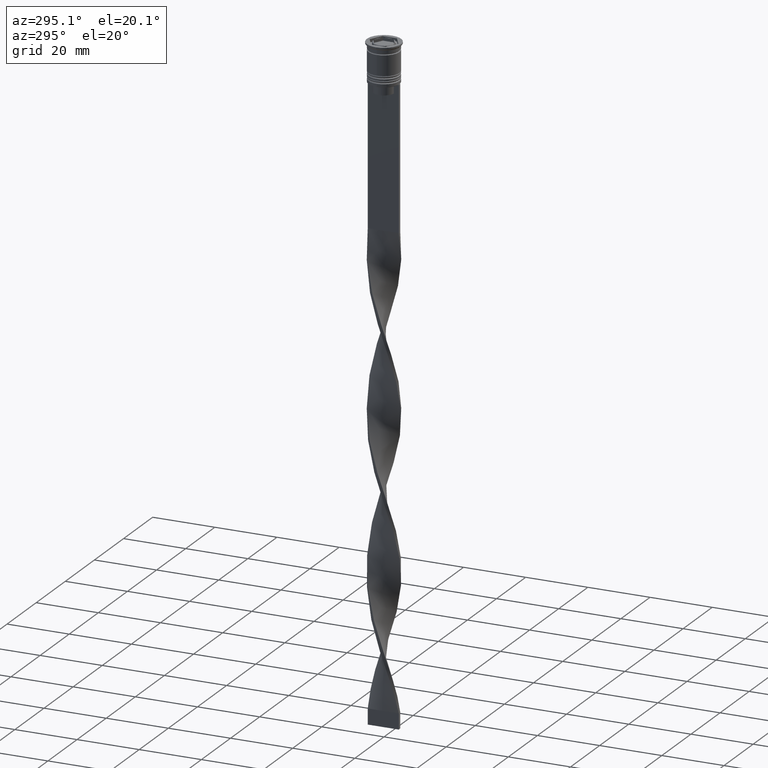
[diagram: clean part render]
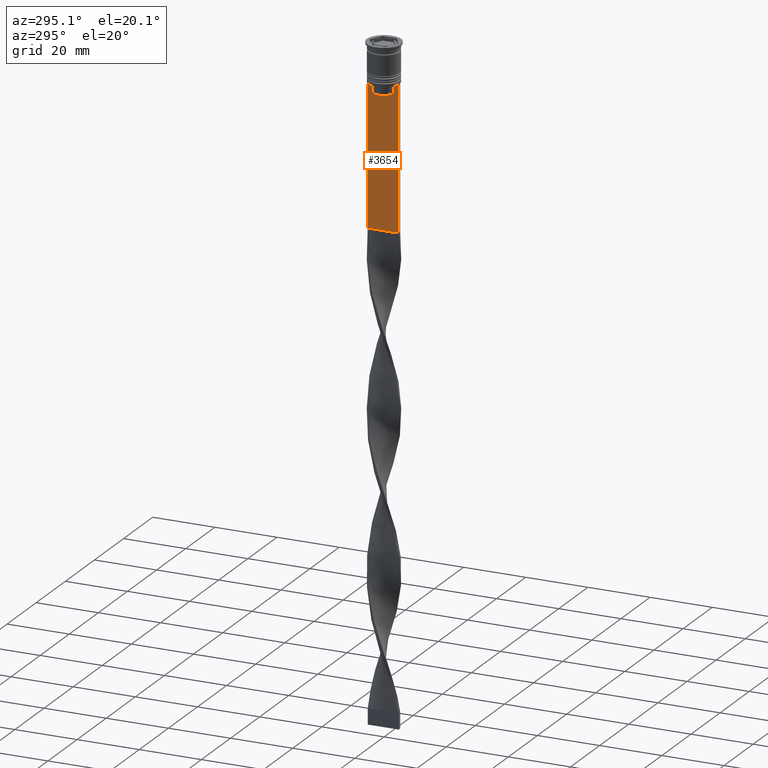
[diagram: same view with one face highlighted and labeled with its STEP entity id]
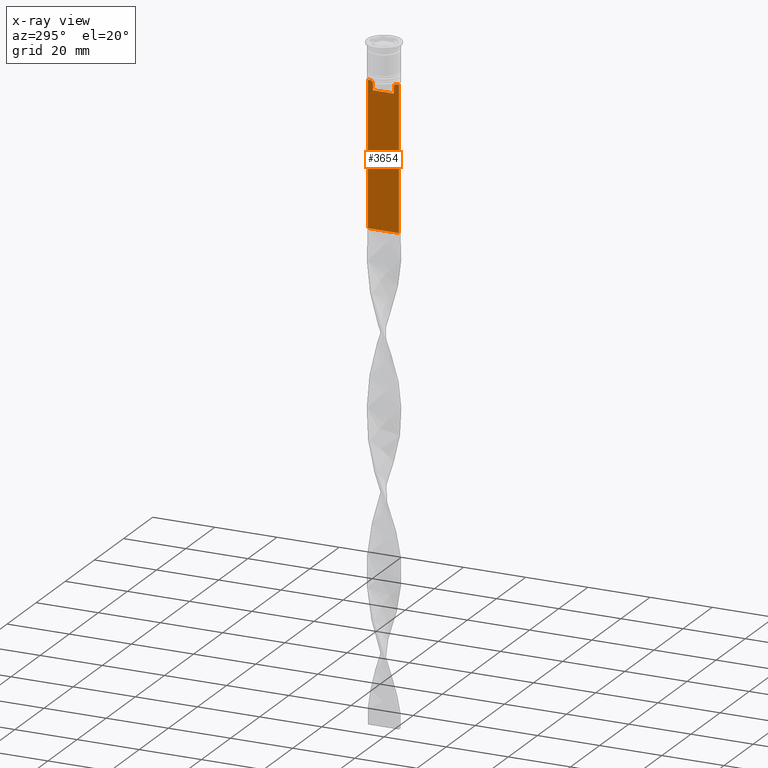
[diagram: x-ray of the same camera — body ghosted, the highlighted face saturated]
A machine part, auxiliary view. The second image highlights one B-rep face of the part: STEP entity #3654.
The next image is the same camera in x-ray: the body ghosted, the highlighted face saturated — about 0% of this face is hidden behind the body in this view.
In plain terms, the highlighted planar face has unit normal (-1, 0, 0).
Its self-contained STEP definition (entity closure, byte-faithful):
#1 = VECTOR ( 'NONE', #3182, 1000.000000000000000 ) ;
#31 = VERTEX_POINT ( 'NONE', #1957 ) ;
#123 = VERTEX_POINT ( 'NONE', #845 ) ;
#234 = DIRECTION ( 'NONE',  ( -0.000000000000000000, -0.000000000000000000, 1.000000000000000000 ) ) ;
#323 = VECTOR ( 'NONE', #3318, 1000.000000000000000 ) ;
#328 = EDGE_CURVE ( 'NONE', #936, #2759, #2621, .T. ) ;
#415 = CARTESIAN_POINT ( 'NONE',  ( -0.5000000000000000000, -4.999999999999999112, -12.50000000000000000 ) ) ;
#434 = LINE ( 'NONE', #779, #1 ) ;
#466 = VERTEX_POINT ( 'NONE', #2375 ) ;
#501 = VECTOR ( 'NONE', #3122, 1000.000000000000000 ) ;
#619 = VERTEX_POINT ( 'NONE', #2800 ) ;
#633 = CARTESIAN_POINT ( 'NONE',  ( -0.5000000000000000000, -4.999999999999999112, -12.50000000000000000 ) ) ;
#653 = ORIENTED_EDGE ( 'NONE', *, *, #1066, .F. ) ;
#698 = CARTESIAN_POINT ( 'NONE',  ( -0.5000000000000000000, -3.699658232838647365, -12.66676999593996555 ) ) ;
#737 = LINE ( 'NONE', #415, #501 ) ;
#779 = CARTESIAN_POINT ( 'NONE',  ( -0.5000000000000000000, 3.399999999999998135, -15.50000000000000000 ) ) ;
#820 = CARTESIAN_POINT ( 'NONE',  ( -0.5000000000000000000, -3.363034344160045208, -13.00000000000000178 ) ) ;
#845 = CARTESIAN_POINT ( 'NONE',  ( -0.5000000000000000000, 3.363034344160045652, -15.50000000000000000 ) ) ;
#884 = VECTOR ( 'NONE', #1258, 1000.000000000000000 ) ;
#936 = VERTEX_POINT ( 'NONE', #1842 ) ;
#1019 = ORIENTED_EDGE ( 'NONE', *, *, #3535, .F. ) ;
#1039 = VERTEX_POINT ( 'NONE', #1044 ) ;
#1044 = CARTESIAN_POINT ( 'NONE',  ( -0.5000000000000000000, 4.874423042781575788, -12.50000000000000000 ) ) ;
#1066 = EDGE_CURVE ( 'NONE', #2901, #1039, #737, .T. ) ;
#1069 = CARTESIAN_POINT ( 'NONE',  ( -0.5000000000000000000, 3.531412678228260216, -12.83345231756357840 ) ) ;
#1077 = CARTESIAN_POINT ( 'NONE',  ( -0.5000000000000000000, -4.999999999999999112, -58.50000000000000000 ) ) ;
#1225 = VERTEX_POINT ( 'NONE', #1077 ) ;
#1257 = CARTESIAN_POINT ( 'NONE',  ( -0.5000000000000000000, 3.867815921162742754, -12.50000000000000000 ) ) ;
#1258 = DIRECTION ( 'NONE',  ( 0.000000000000000000, -1.000000000000000000, 0.000000000000000000 ) ) ;
#1280 = AXIS2_PLACEMENT_3D ( 'NONE', #1950, #3787, #3549 ) ;
#1320 = ORIENTED_EDGE ( 'NONE', *, *, #3663, .F. ) ;
#1321 = LINE ( 'NONE', #3864, #1667 ) ;
#1351 = CARTESIAN_POINT ( 'NONE',  ( -0.5000000000000000000, 3.363034344160045208, -13.00000000000000178 ) ) ;
#1407 = VECTOR ( 'NONE', #2618, 1000.000000000000000 ) ;
#1441 = DIRECTION ( 'NONE',  ( 0.000000000000000000, -1.000000000000000000, 0.000000000000000000 ) ) ;
#1509 = ORIENTED_EDGE ( 'NONE', *, *, #2522, .F. ) ;
#1527 = ORIENTED_EDGE ( 'NONE', *, *, #328, .F. ) ;
#1541 = VECTOR ( 'NONE', #1441, 1000.000000000000000 ) ;
#1563 = DIRECTION ( 'NONE',  ( 0.000000000000000000, 0.000000000000000000, -1.000000000000000000 ) ) ;
#1667 = VECTOR ( 'NONE', #2607, 1000.000000000000000 ) ;
#1685 = EDGE_CURVE ( 'NONE', #3474, #31, #2937, .T. ) ;
#1794 = ORIENTED_EDGE ( 'NONE', *, *, #1685, .F. ) ;
#1842 = CARTESIAN_POINT ( 'NONE',  ( -0.5000000000000000000, -4.874423042781575788, -12.50000000000000000 ) ) ;
#1871 = CARTESIAN_POINT ( 'NONE',  ( -0.5000000000000000000, 5.000000000000000888, -2.450124378879110054 ) ) ;
#1950 = CARTESIAN_POINT ( 'NONE',  ( -0.5000000000000000000, -4.999999999999999112, -2.450124378879110054 ) ) ;
#1951 = ORIENTED_EDGE ( 'NONE', *, *, #2918, .F. ) ;
#1957 = CARTESIAN_POINT ( 'NONE',  ( -0.5000000000000000000, 3.363034344160045208, -13.00000000000000178 ) ) ;
#2024 = CARTESIAN_POINT ( 'NONE',  ( -0.5000000000000000000, -4.999999999999999112, -12.50000000000000000 ) ) ;
#2144 = EDGE_CURVE ( 'NONE', #3968, #2165, #3554, .T. ) ;
#2152 = ORIENTED_EDGE ( 'NONE', *, *, #3710, .F. ) ;
#2165 = VERTEX_POINT ( 'NONE', #820 ) ;
#2205 = EDGE_CURVE ( 'NONE', #466, #936, #3325, .T. ) ;
#2228 = CARTESIAN_POINT ( 'NONE',  ( -0.5000000000000000000, -3.531412985305424801, -12.83345201382502765 ) ) ;
#2249 = VECTOR ( 'NONE', #234, 1000.000000000000000 ) ;
#2324 = CARTESIAN_POINT ( 'NONE',  ( -0.5000000000000000000, -3.363034344160045208, 0.000000000000000000 ) ) ;
#2332 = LINE ( 'NONE', #3582, #1407 ) ;
#2348 = CARTESIAN_POINT ( 'NONE',  ( -0.5000000000000000000, 5.000000000000000888, -12.50000000000000000 ) ) ;
#2375 = CARTESIAN_POINT ( 'NONE',  ( -0.5000000000000000000, -3.867815921162742754, -12.50000000000000000 ) ) ;
#2394 = LINE ( 'NONE', #2993, #323 ) ;
#2482 = B_SPLINE_CURVE_WITH_KNOTS ( 'NONE', 3,
 ( #2531, #2228, #698, #3057 ),
 .UNSPECIFIED., .F., .F.,
 ( 4, 4 ),
 ( 0.01632394437298965648, 0.01703543518243618576 ),
 .UNSPECIFIED. ) ;
#2522 = EDGE_CURVE ( 'NONE', #2759, #1225, #2394, .T. ) ;
#2531 = CARTESIAN_POINT ( 'NONE',  ( -0.5000000000000000000, -3.363034344160045208, -13.00000000000000178 ) ) ;
#2607 = DIRECTION ( 'NONE',  ( 0.000000000000000000, 1.000000000000000000, 0.000000000000000000 ) ) ;
#2618 = DIRECTION ( 'NONE',  ( 0.000000000000000000, -1.000000000000000000, 0.000000000000000000 ) ) ;
#2621 = LINE ( 'NONE', #2024, #884 ) ;
#2624 = PLANE ( 'NONE',  #1280 ) ;
#2694 = EDGE_CURVE ( 'NONE', #2901, #619, #3099, .T. ) ;
#2759 = VERTEX_POINT ( 'NONE', #633 ) ;
#2770 = VECTOR ( 'NONE', #1563, 1000.000000000000000 ) ;
#2786 = CARTESIAN_POINT ( 'NONE',  ( -0.5000000000000000000, -3.363034344160045652, -15.50000000000000000 ) ) ;
#2800 = CARTESIAN_POINT ( 'NONE',  ( -0.5000000000000000000, 5.000000000000000888, -58.50000000000000000 ) ) ;
#2877 = ORIENTED_EDGE ( 'NONE', *, *, #2205, .F. ) ;
#2885 = CARTESIAN_POINT ( 'NONE',  ( -0.5000000000000000000, 3.699657965831574913, -12.66677026074361301 ) ) ;
#2901 = VERTEX_POINT ( 'NONE', #2348 ) ;
#2908 = CARTESIAN_POINT ( 'NONE',  ( -0.5000000000000000000, 3.867815921162742754, -12.50000000000000000 ) ) ;
#2918 = EDGE_CURVE ( 'NONE', #31, #123, #3673, .T. ) ;
#2937 = B_SPLINE_CURVE_WITH_KNOTS ( 'NONE', 3,
 ( #2908, #2885, #1069, #1351 ),
 .UNSPECIFIED., .F., .F.,
 ( 4, 4 ),
 ( 0.006644825462451552783, 0.007355321358912435097 ),
 .UNSPECIFIED. ) ;
#2950 = DIRECTION ( 'NONE',  ( 0.000000000000000000, 0.000000000000000000, -1.000000000000000000 ) ) ;
#2991 = ORIENTED_EDGE ( 'NONE', *, *, #3902, .F. ) ;
#2993 = CARTESIAN_POINT ( 'NONE',  ( -0.5000000000000000000, -4.999999999999999112, -2.450124378879110054 ) ) ;
#3057 = CARTESIAN_POINT ( 'NONE',  ( -0.5000000000000000000, -3.867815921162742754, -12.50000000000000000 ) ) ;
#3099 = LINE ( 'NONE', #1871, #2770 ) ;
#3122 = DIRECTION ( 'NONE',  ( 0.000000000000000000, -1.000000000000000000, 0.000000000000000000 ) ) ;
#3182 = DIRECTION ( 'NONE',  ( 0.000000000000000000, -1.000000000000000000, 0.000000000000000000 ) ) ;
#3248 = ORIENTED_EDGE ( 'NONE', *, *, #2694, .T. ) ;
#3318 = DIRECTION ( 'NONE',  ( 0.000000000000000000, 0.000000000000000000, -1.000000000000000000 ) ) ;
#3325 = LINE ( 'NONE', #3869, #1541 ) ;
#3356 = ORIENTED_EDGE ( 'NONE', *, *, #2144, .F. ) ;
#3474 = VERTEX_POINT ( 'NONE', #1257 ) ;
#3535 = EDGE_CURVE ( 'NONE', #2165, #466, #2482, .T. ) ;
#3549 = DIRECTION ( 'NONE',  ( 0.000000000000000000, 0.000000000000000000, 1.000000000000000000 ) ) ;
#3554 = LINE ( 'NONE', #2324, #2249 ) ;
#3570 = FACE_OUTER_BOUND ( 'NONE', #3601, .T. ) ;
#3582 = CARTESIAN_POINT ( 'NONE',  ( -0.5000000000000000000, -4.999999999999999112, -12.50000000000000000 ) ) ;
#3599 = CARTESIAN_POINT ( 'NONE',  ( -0.5000000000000000000, 3.363034344160045208, 0.000000000000000000 ) ) ;
#3601 = EDGE_LOOP ( 'NONE', ( #1794, #2991, #653, #3248, #2152, #1509, #1527, #2877, #1019, #3356, #1320, #1951 ) ) ;
#3654 = ADVANCED_FACE ( 'NONE', ( #3570 ), #2624, .T. ) ;
#3663 = EDGE_CURVE ( 'NONE', #123, #3968, #434, .T. ) ;
#3673 = LINE ( 'NONE', #3599, #3934 ) ;
#3710 = EDGE_CURVE ( 'NONE', #1225, #619, #1321, .T. ) ;
#3787 = DIRECTION ( 'NONE',  ( -1.000000000000000000, 0.000000000000000000, 0.000000000000000000 ) ) ;
#3864 = CARTESIAN_POINT ( 'NONE',  ( -0.5000000000000000000, -4.999999999999999112, -58.50000000000000000 ) ) ;
#3869 = CARTESIAN_POINT ( 'NONE',  ( -0.5000000000000000000, -4.999999999999999112, -12.50000000000000000 ) ) ;
#3902 = EDGE_CURVE ( 'NONE', #1039, #3474, #2332, .T. ) ;
#3934 = VECTOR ( 'NONE', #2950, 1000.000000000000000 ) ;
#3968 = VERTEX_POINT ( 'NONE', #2786 ) ;